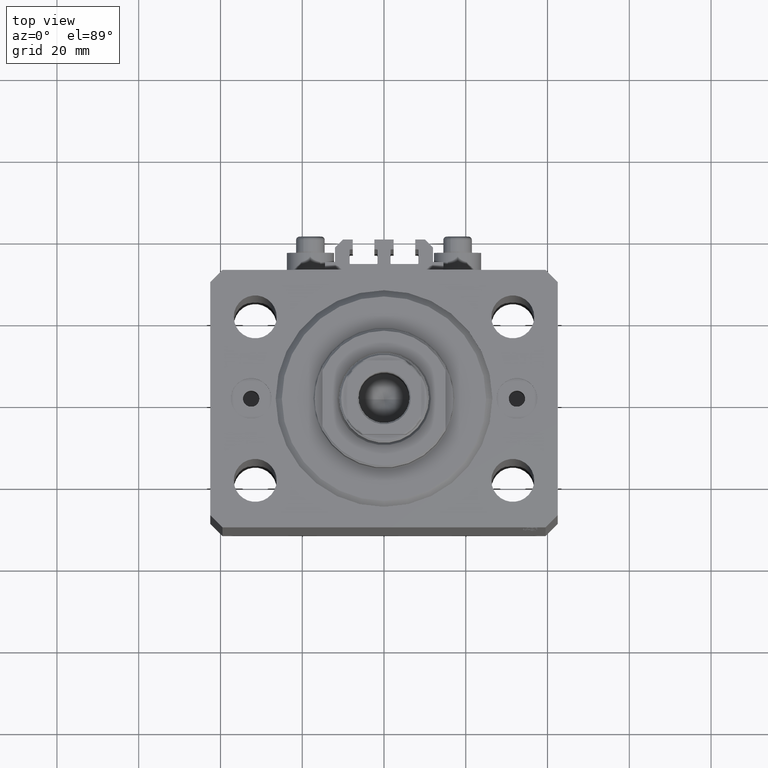
[diagram: clean part render]
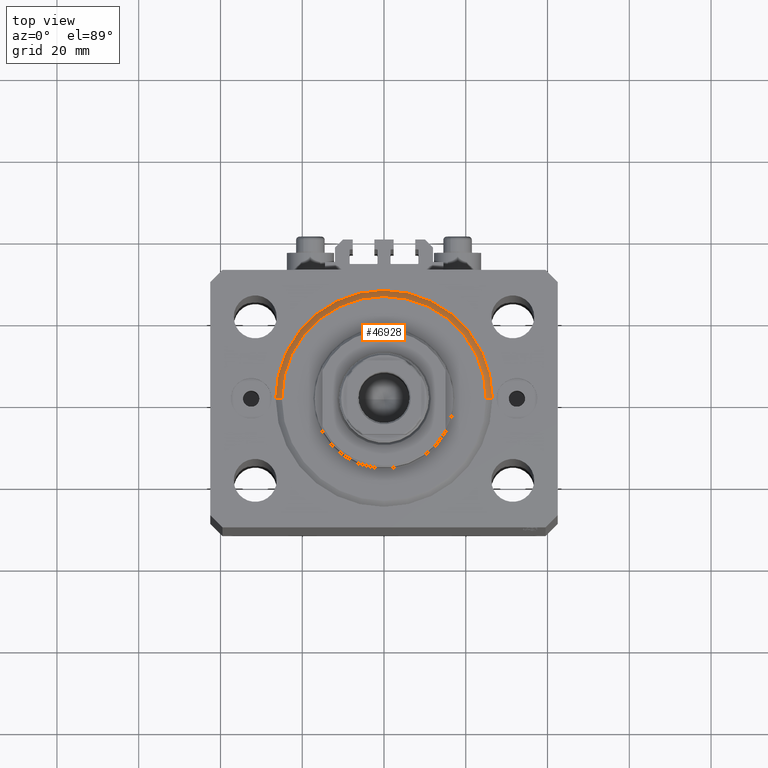
[diagram: same view with one face highlighted and labeled with its STEP entity id]
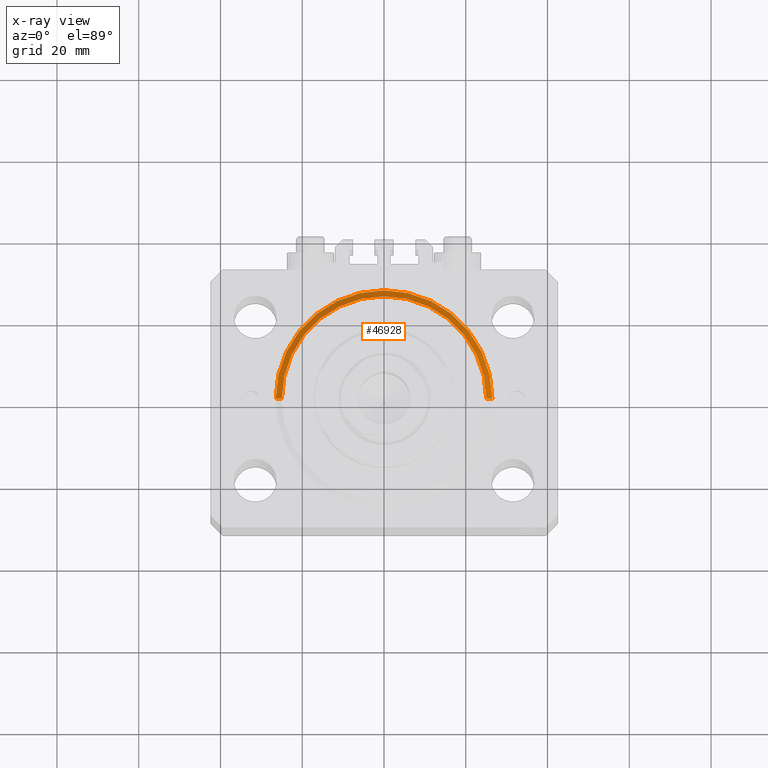
[diagram: x-ray of the same camera — body ghosted, the highlighted face saturated]
A machine part, top view. The second image highlights one B-rep face of the part: STEP entity #46928.
The next image is the same camera in x-ray: the body ghosted, the highlighted face saturated — about 0% of this face is hidden behind the body in this view.
In plain terms, the highlighted conical surface has half-angle 45 deg.
Its self-contained STEP definition (entity closure, byte-faithful):
#144 = VECTOR ( 'NONE', #3734, 1000.000000000000000 ) ;
#2696 = DIRECTION ( 'NONE',  ( 1.000000000000000000, 0.000000000000000000, 0.000000000000000000 ) ) ;
#3734 = DIRECTION ( 'NONE',  ( 0.7071067811865483499, 0.000000000000000000, 0.7071067811865466846 ) ) ;
#5441 = VECTOR ( 'NONE', #13332, 1000.000000000000000 ) ;
#11837 = LINE ( 'NONE', #40506, #144 ) ;
#12992 = EDGE_CURVE ( 'NONE', #38401, #31695, #11837, .T. ) ;
#13332 = DIRECTION ( 'NONE',  ( -0.7071067811865483499, 8.659560562354942719E-17, 0.7071067811865466846 ) ) ;
#14665 = FACE_OUTER_BOUND ( 'NONE', #29488, .T. ) ;
#15823 = AXIS2_PLACEMENT_3D ( 'NONE', #29222, #40207, #37561 ) ;
#17382 = CIRCLE ( 'NONE', #37236, 24.99999999999998224 ) ;
#17882 = DIRECTION ( 'NONE',  ( 1.000000000000000000, 0.000000000000000000, 0.000000000000000000 ) ) ;
#20812 = CARTESIAN_POINT ( 'NONE',  ( 26.50000000000000355, 3.245314017740486554E-15, 1.500000000000018652 ) ) ;
#21082 = CARTESIAN_POINT ( 'NONE',  ( 0.000000000000000000, 0.000000000000000000, 0.000000000000000000 ) ) ;
#21211 = CARTESIAN_POINT ( 'NONE',  ( 0.000000000000000000, 0.000000000000000000, 1.500000000000018652 ) ) ;
#24552 = DIRECTION ( 'NONE',  ( -0.000000000000000000, -0.000000000000000000, 1.000000000000000000 ) ) ;
#24583 = ORIENTED_EDGE ( 'NONE', *, *, #12992, .F. ) ;
#26027 = ORIENTED_EDGE ( 'NONE', *, *, #28263, .F. ) ;
#26466 = CARTESIAN_POINT ( 'NONE',  ( -24.99999999999998224, 3.153465507804433615E-15, 0.000000000000000000 ) ) ;
#27121 = ORIENTED_EDGE ( 'NONE', *, *, #43539, .F. ) ;
#27259 = CONICAL_SURFACE ( 'NONE', #15823, 26.50000000000000355, 0.7853981633974495002 ) ;
#28263 = EDGE_CURVE ( 'NONE', #41058, #38401, #17382, .T. ) ;
#29222 = CARTESIAN_POINT ( 'NONE',  ( 0.000000000000000000, 0.000000000000000000, 1.500000000000018652 ) ) ;
#29488 = EDGE_LOOP ( 'NONE', ( #26027, #30058, #27121, #24583 ) ) ;
#30058 = ORIENTED_EDGE ( 'NONE', *, *, #40152, .T. ) ;
#31695 = VERTEX_POINT ( 'NONE', #20812 ) ;
#32433 = CARTESIAN_POINT ( 'NONE',  ( 24.99999999999998224, 0.000000000000000000, 0.000000000000000000 ) ) ;
#32442 = LINE ( 'NONE', #39367, #5441 ) ;
#32486 = CIRCLE ( 'NONE', #37828, 26.50000000000000355 ) ;
#37236 = AXIS2_PLACEMENT_3D ( 'NONE', #21082, #42569, #2696 ) ;
#37365 = VERTEX_POINT ( 'NONE', #41067 ) ;
#37561 = DIRECTION ( 'NONE',  ( 1.000000000000000000, 0.000000000000000000, 0.000000000000000000 ) ) ;
#37828 = AXIS2_PLACEMENT_3D ( 'NONE', #21211, #24552, #17882 ) ;
#38401 = VERTEX_POINT ( 'NONE', #32433 ) ;
#39367 = CARTESIAN_POINT ( 'NONE',  ( -26.50000000000000355, 3.245314017740486554E-15, 1.500000000000018652 ) ) ;
#40152 = EDGE_CURVE ( 'NONE', #41058, #37365, #32442, .T. ) ;
#40207 = DIRECTION ( 'NONE',  ( -0.000000000000000000, -0.000000000000000000, 1.000000000000000000 ) ) ;
#40506 = CARTESIAN_POINT ( 'NONE',  ( 26.50000000000000355, 0.000000000000000000, 1.500000000000018652 ) ) ;
#41058 = VERTEX_POINT ( 'NONE', #26466 ) ;
#41067 = CARTESIAN_POINT ( 'NONE',  ( -26.50000000000000355, 0.000000000000000000, 1.500000000000018652 ) ) ;
#42569 = DIRECTION ( 'NONE',  ( -0.000000000000000000, -0.000000000000000000, -1.000000000000000000 ) ) ;
#43539 = EDGE_CURVE ( 'NONE', #31695, #37365, #32486, .T. ) ;
#46928 = ADVANCED_FACE ( 'NONE', ( #14665 ), #27259, .T. ) ;